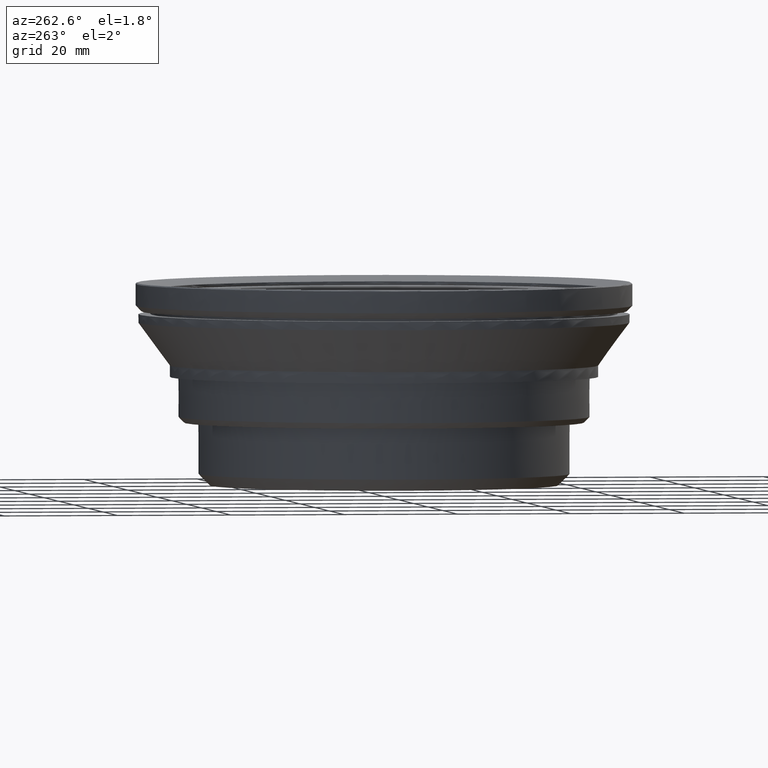
[diagram: clean part render]
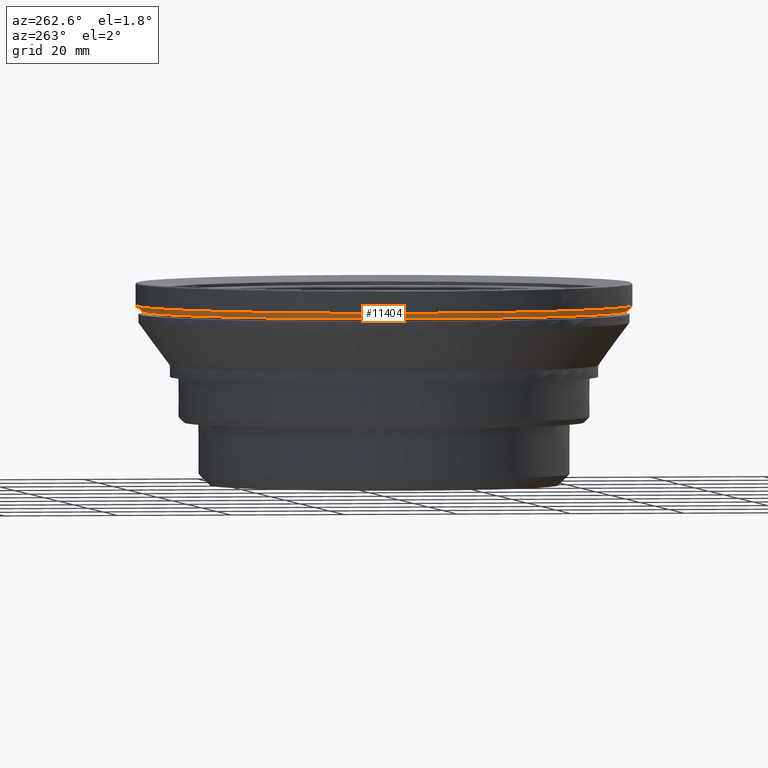
[diagram: same view with one face highlighted and labeled with its STEP entity id]
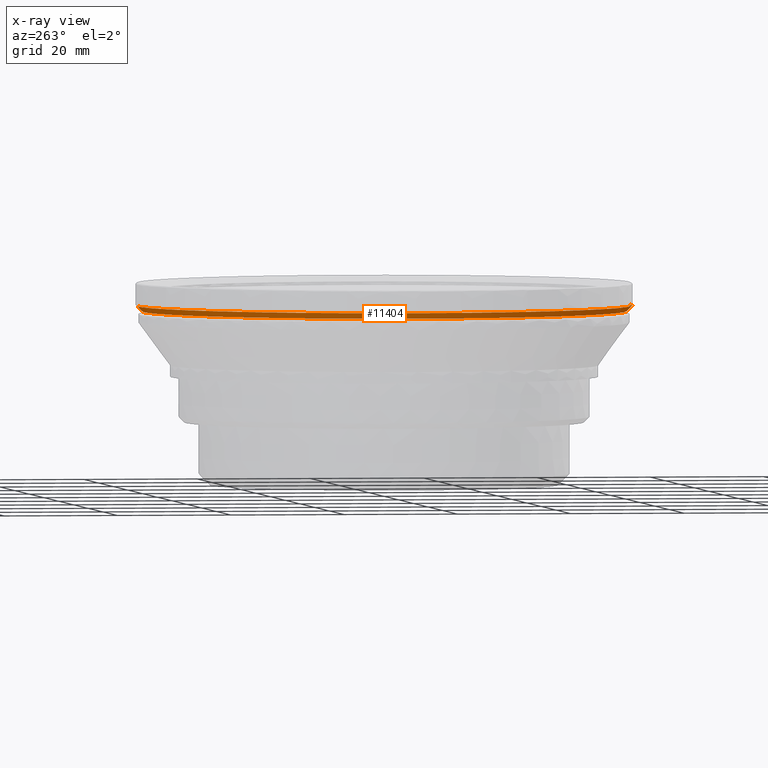
[diagram: x-ray of the same camera — body ghosted, the highlighted face saturated]
A machine part, auxiliary view. The second image highlights one B-rep face of the part: STEP entity #11404.
The next image is the same camera in x-ray: the body ghosted, the highlighted face saturated — about 0% of this face is hidden behind the body in this view.
In plain terms, the highlighted face is a freeform B-spline surface patch.
Its self-contained STEP definition (entity closure, byte-faithful):
#176 = CARTESIAN_POINT ( 'NONE',  ( -17.12293421148999784, -40.06108046163999603, 51.18783662029999704 ) ) ;
#414 = VERTEX_POINT ( 'NONE', #6916 ) ;
#776 = CARTESIAN_POINT ( 'NONE',  ( -0.6410287084725999618, 43.29902459803999903, 51.18783662029999704 ) ) ;
#779 = CARTESIAN_POINT ( 'NONE',  ( -38.19695187326483676, 18.84224418152011538, 50.51450328702001258 ) ) ;
#848 = CARTESIAN_POINT ( 'NONE',  ( -41.70528174329999871, -9.913624871716999465, 50.49450328685999523 ) ) ;
#850 = EDGE_CURVE ( 'NONE', #4732, #9756, #11648, .T. ) ;
#852 = CARTESIAN_POINT ( 'NONE',  ( -25.93205138025125223, -33.78706867180078177, 50.51450328702001968 ) ) ;
#923 = CARTESIAN_POINT ( 'NONE',  ( -0.6307342387858000388, 42.60367275139000043, 50.49450328685999523 ) ) ;
#925 = CARTESIAN_POINT ( 'NONE',  ( -21.29141842644903804, -36.88784837389284377, 50.51450328701999837 ) ) ;
#1069 = CARTESIAN_POINT ( 'NONE',  ( -7.275340839242000257, 42.24546592833999625, 50.49450328685999523 ) ) ;
#1343 = CARTESIAN_POINT ( 'NONE',  ( -0.6461759390771999456, -43.64670052142000145, 51.53450328702000149 ) ) ;
#1411 = CARTESIAN_POINT ( 'NONE',  ( 2.667341334222999905, -42.39617541940999956, 50.49450328685999523 ) ) ;
#1865 = CARTESIAN_POINT ( 'NONE',  ( 2.689108710705999883, 42.74215801888000499, 50.84116995357999969 ) ) ;
#1937 = CARTESIAN_POINT ( 'NONE',  ( -41.70528174425999879, 9.913624867665999929, 50.49450328685999523 ) ) ;
#1940 = CARTESIAN_POINT ( 'NONE',  ( -11.02832487589072130, 41.13895736189599717, 50.51450328701999837 ) ) ;
#2000 = CARTESIAN_POINT ( 'NONE',  ( -8.987427641094275253E-09, -43.16656292160757857, 51.18127369809436544 ) ) ;
#2010 = CARTESIAN_POINT ( 'NONE',  ( -38.59446249487000102, -19.44717719535000455, 50.84116995357999969 ) ) ;
#2013 = CARTESIAN_POINT ( 'NONE',  ( -18.84224417605696900, -38.19695187592433427, 50.51450328701999126 ) ) ;
#2060 = CARTESIAN_POINT ( 'NONE',  ( -1.143262293001944597E-08, 43.16656292160695330, 51.18127369809443650 ) ) ;
#2088 = CARTESIAN_POINT ( 'NONE',  ( -33.31834447130000143, 28.07085194068999812, 51.18783662029999704 ) ) ;
#2089 = CARTESIAN_POINT ( 'NONE',  ( -41.13895407856566067, -11.02834138385138552, 50.51450328702001968 ) ) ;
#2434 = CARTESIAN_POINT ( 'NONE',  ( -2.790572933582447845, 42.49999999999998579, 50.51450328701998416 ) ) ;
#2579 = CARTESIAN_POINT ( 'NONE',  ( -26.11959189628933586, 35.28020475025675040, 51.51460783262084675 ) ) ;
#2652 = CARTESIAN_POINT ( 'NONE',  ( -42.70678239039875024, -10.15168828501007603, 51.51460783262084675 ) ) ;
#3013 = CARTESIAN_POINT ( 'NONE',  ( -8.917946168050688399E-09, -42.83323038938393523, 50.84793956363781575 ) ) ;
#3025 = CARTESIAN_POINT ( 'NONE',  ( -33.58587904433999682, -28.29625100219000444, 51.53450328702000149 ) ) ;
#3028 = CARTESIAN_POINT ( 'NONE',  ( -18.84224669386491513, 38.19695794019239088, 50.51450328701999837 ) ) ;
#3099 = CARTESIAN_POINT ( 'NONE',  ( 2.710876091307000024, 43.08814061809000151, 51.18783662029999704 ) ) ;
#3180 = CARTESIAN_POINT ( 'NONE',  ( -42.04562616436000155, -9.994527020713999121, 50.84116995357999969 ) ) ;
#3181 = CARTESIAN_POINT ( 'NONE',  ( -5.554337271858964975, -42.22780119553772238, 50.51450328701999837 ) ) ;
#3237 = CARTESIAN_POINT ( 'NONE',  ( 5.216086633796179786E-10, -43.49984318133144967, 51.51455555978470358 ) ) ;
#3302 = CARTESIAN_POINT ( 'NONE',  ( -1.134442188287702650E-08, 42.83323038938806349, 50.84793956363802891 ) ) ;
#3327 = CARTESIAN_POINT ( 'NONE',  ( -25.71522683207000171, 34.73402155121999613, 50.84116995357999969 ) ) ;
#3394 = CARTESIAN_POINT ( 'NONE',  ( 2.710876095491000282, -43.08814061782999971, 51.18783662029999704 ) ) ;
#3603 = CARTESIAN_POINT ( 'NONE',  ( -26.11959189286104532, -35.28020475279559065, 51.51460783262084675 ) ) ;
#3674 = CARTESIAN_POINT ( 'NONE',  ( -42.70678239137874499, 10.15168828086180852, 51.51460783262084675 ) ) ;
#4121 = CARTESIAN_POINT ( 'NONE',  ( -42.72631500648000014, -10.15633131871000039, 51.53450328702000149 ) ) ;
#4124 = CARTESIAN_POINT ( 'NONE',  ( -21.29141477552102302, 36.88784291700463314, 50.51450328701999837 ) ) ;
#4194 = CARTESIAN_POINT ( 'NONE',  ( -25.92338246309000027, -35.01518113048000203, 51.18783662029999704 ) ) ;
#4273 = CARTESIAN_POINT ( 'NONE',  ( -7.334712735616999879, 42.59021863214999826, 50.84116995357999969 ) ) ;
#4348 = CARTESIAN_POINT ( 'NONE',  ( -40.33280839018735975, 13.68584756952998127, 50.51450328702001258 ) ) ;
#4419 = CARTESIAN_POINT ( 'NONE',  ( -43.91684249652000460, -2.132519050235000049E-09, 51.53450328702000149 ) ) ;
#4554 = CARTESIAN_POINT ( 'NONE',  ( -0.6307342346483000295, -42.60367275144999155, 50.49450328685999523 ) ) ;
#4620 = CARTESIAN_POINT ( 'NONE',  ( 2.689108714856999871, -42.74215801862000319, 50.84116995357999969 ) ) ;
#4691 = CARTESIAN_POINT ( 'NONE',  ( -3.345005010901474680E-10, 42.49994892860434703, 50.51455435812430039 ) ) ;
#4732 = VERTEX_POINT ( 'NONE', #13106 ) ;
#4761 = CARTESIAN_POINT ( 'NONE',  ( -0.6358814694579000282, -42.95134867478000018, 50.84116995357999969 ) ) ;
#4767 = CARTESIAN_POINT ( 'NONE',  ( -43.89676562296189388, -2.131544137074251523E-09, 51.51460783262084675 ) ) ;
#4817 = EDGE_CURVE ( 'NONE', #414, #4732, #10490, .T. ) ;
#4844 = CARTESIAN_POINT ( 'NONE',  ( -17.25253463165353907, 40.36429558881104640, 51.51460783262084675 ) ) ;
#5149 = CARTESIAN_POINT ( 'NONE',  ( -36.88784291639579038, -21.29141477623392120, 50.51450328702000547 ) ) ;
#5192 = CARTESIAN_POINT ( 'NONE',  ( -3.345005010901474680E-10, 42.49994892860434703, 50.51455435812430039 ) ) ;
#5219 = CARTESIAN_POINT ( 'NONE',  ( -17.12293421537999905, 40.06108045997999767, 51.18783662029999704 ) ) ;
#5222 = CARTESIAN_POINT ( 'NONE',  ( -32.02530903599721057, 28.07877200791720540, 50.51450328701999837 ) ) ;
#5276 = EDGE_CURVE ( 'NONE', #10782, #9756, #9105, .T. ) ;
#5294 = CARTESIAN_POINT ( 'NONE',  ( -25.50707119431000081, -34.45286197696999864, 50.49450328685999523 ) ) ;
#5417 = CARTESIAN_POINT ( 'NONE',  ( -5.216146046508750435E-10, 43.49984318133139993, 51.51455555978470358 ) ) ;
#5444 = CARTESIAN_POINT ( 'NONE',  ( -16.98544308206000153, 39.73940408810999969, 50.84116995357999969 ) ) ;
#5515 = CARTESIAN_POINT ( 'NONE',  ( -17.26042534868999923, 40.38275683185000275, 51.53450328702000149 ) ) ;
#5719 = CARTESIAN_POINT ( 'NONE',  ( -7.453456524163000196, -43.27972404047000055, 51.53450328702000149 ) ) ;
#5799 = CARTESIAN_POINT ( 'NONE',  ( -2.472892774579610986, -43.49965624862979041, 51.51460783262084675 ) ) ;
#5868 = CARTESIAN_POINT ( 'NONE',  ( -33.57052503871091886, -28.28331518483076934, 51.51460783262084675 ) ) ;
#6282 = EDGE_CURVE ( 'NONE', #10782, #414, #11226, .T. ) ;
#6319 = CARTESIAN_POINT ( 'NONE',  ( -16.84795194875000135, 39.41772771624000171, 50.49450328685999523 ) ) ;
#6392 = CARTESIAN_POINT ( 'NONE',  ( -25.71522682870000054, -34.73402155371999811, 50.84116995357999969 ) ) ;
#6455 = CARTESIAN_POINT ( 'NONE',  ( 3.344953627059759891E-10, -42.49994892860434703, 50.51455435812420092 ) ) ;
#6465 = CARTESIAN_POINT ( 'NONE',  ( -39.21927944693999990, -19.76201318984000110, 51.53450328702000149 ) ) ;
#6468 = CARTESIAN_POINT ( 'NONE',  ( -2.790606591290962335, -42.49999999999999289, 50.51450328702001258 ) ) ;
#6542 = CARTESIAN_POINT ( 'NONE',  ( -25.92338246649000055, 35.01518112796000537, 51.18783662029999704 ) ) ;
#6543 = CARTESIAN_POINT ( 'NONE',  ( -42.50000328341280920, -2.790623097142965303, 50.51450328701999837 ) ) ;
#6613 = CARTESIAN_POINT ( 'NONE',  ( 2.732643471907000521, 43.43412321730000514, 51.53450328702000149 ) ) ;
#6680 = CARTESIAN_POINT ( 'NONE',  ( -17.26042534476999890, -40.38275683353000289, 51.53450328702000149 ) ) ;
#6916 = CARTESIAN_POINT ( 'NONE',  ( 3.344953627059759891E-10, -42.49994892860434703, 50.51455435812420092 ) ) ;
#6955 = CARTESIAN_POINT ( 'NONE',  ( -16.84795194491999837, -39.41772771787000096, 50.49450328685999523 ) ) ;
#7417 = CARTESIAN_POINT ( 'NONE',  ( -5.216146046508750435E-10, 43.49984318133139993, 51.51455555978470358 ) ) ;
#7485 = CARTESIAN_POINT ( 'NONE',  ( -25.50707119766000375, 34.45286197448999843, 50.49450328685999523 ) ) ;
#7560 = CARTESIAN_POINT ( 'NONE',  ( -38.59446249676000207, 19.44717719160000158, 50.84116995357999969 ) ) ;
#7563 = CARTESIAN_POINT ( 'NONE',  ( -32.02530439295125575, -28.07876736504574566, 50.51450328702000547 ) ) ;
#7640 = CARTESIAN_POINT ( 'NONE',  ( -42.38597058541999729, -10.07542916971000047, 51.18783662029999704 ) ) ;
#7711 = CARTESIAN_POINT ( 'NONE',  ( 2.667341330105000186, 42.39617541967000136, 50.49450328685999523 ) ) ;
#7850 = CARTESIAN_POINT ( 'NONE',  ( -7.275340835139000539, -42.24546592904999898, 50.49450328685999523 ) ) ;
#8126 = CARTESIAN_POINT ( 'NONE',  ( -39.20135009716325669, 19.75297885165128520, 51.51460783262084675 ) ) ;
#8577 = CARTESIAN_POINT ( 'NONE',  ( -33.31834446858000121, -28.07085194392999838, 51.18783662029999704 ) ) ;
#8580 = CARTESIAN_POINT ( 'NONE',  ( -36.88784837729289734, 21.29141842284485264, 50.51450328702001258 ) ) ;
#8651 = CARTESIAN_POINT ( 'NONE',  ( -7.453456528365999922, 43.27972403975000049, 51.53450328702000149 ) ) ;
#8729 = CARTESIAN_POINT ( 'NONE',  ( -32.78327531973000220, 27.62005382422000110, 50.49450328685999523 ) ) ;
#8801 = CARTESIAN_POINT ( 'NONE',  ( -38.90687097090000179, -19.60459519260000150, 51.18783662029999704 ) ) ;
#8802 = CARTESIAN_POINT ( 'NONE',  ( -33.78706866841470458, 25.93205138383444819, 50.51450328701999837 ) ) ;
#9007 = CARTESIAN_POINT ( 'NONE',  ( -16.98544307820000299, -39.73940408975999361, 50.84116995357999969 ) ) ;
#9083 = ORIENTED_EDGE ( 'NONE', *, *, #850, .F. ) ;
#9105 = B_SPLINE_CURVE_WITH_KNOTS ( 'NONE', 3,
 ( #11348, #5799, #9153, #13613, #3603, #5868, #10322, #2652, #4767, #3674, #8126, #12588, #2579, #4844, #10468, #11932, #9661 ),
 .UNSPECIFIED., .F., .F.,
 ( 4, 1, 1, 1, 1, 1, 1, 1, 1, 1, 1, 1, 1, 1, 4 ),
 ( 0.000000000000000000, 0.05428572841717568126, 0.1285714403450512744, 0.2028571522729268883, 0.2771428642008024745, 0.3514285761285825815, 0.4257142880566173737, 0.4999999999843338094, 0.5742857119123685461, 0.6485714238400850373, 0.7228571357681197185, 0.7971428476958362097, 0.8714285596238708909, 0.9457142715515874931, 1.000000000000000000 ),
 .UNSPECIFIED. ) ;
#9147 = CARTESIAN_POINT ( 'NONE',  ( -7.334712731480999892, -42.59021863286000098, 50.84116995357999969 ) ) ;
#9153 = CARTESIAN_POINT ( 'NONE',  ( -8.329758667298046149, -43.00007325279307224, 51.51460783262084675 ) ) ;
#9216 = CARTESIAN_POINT ( 'NONE',  ( 2.732643476124999804, -43.43412321704000334, 51.53450328702000149 ) ) ;
#9601 = CARTESIAN_POINT ( 'NONE',  ( -28.07876736485039970, 32.02530439294827147, 50.51450328701997705 ) ) ;
#9661 = CARTESIAN_POINT ( 'NONE',  ( -5.216146046508750435E-10, 43.49984318133139993, 51.51455555978470358 ) ) ;
#9671 = CARTESIAN_POINT ( 'NONE',  ( -42.72631500746000199, 10.15633131456000093, 51.53450328702000149 ) ) ;
#9756 = VERTEX_POINT ( 'NONE', #7417 ) ;
#9897 = CARTESIAN_POINT ( 'NONE',  ( -42.38597058639999915, 10.07542916559000012, 51.18783662029999704 ) ) ;
#9960 = CARTESIAN_POINT ( 'NONE',  ( 5.216086633796179786E-10, -43.49984318133144967, 51.51455555978470358 ) ) ;
#9972 = CARTESIAN_POINT ( 'NONE',  ( -33.05080989551999693, 27.84545288246000183, 50.84116995357999969 ) ) ;
#10322 = CARTESIAN_POINT ( 'NONE',  ( -39.20135009524384628, -19.75297885545956689, 51.51460783262084675 ) ) ;
#10405 = EDGE_LOOP ( 'NONE', ( #13272, #10709, #10700, #9083 ) ) ;
#10468 = CARTESIAN_POINT ( 'NONE',  ( -8.329758670106681251, 43.00007325239138112, 51.51460783262084675 ) ) ;
#10490 = B_SPLINE_CURVE_WITH_KNOTS ( 'NONE', 3,
 ( #11871, #6468, #3181, #13112, #12168, #2013, #925, #852, #11074, #7563, #13190, #5149, #12020, #12095, #2089, #10923, #6543, #11000, #14362, #13040, #4348, #779, #8580, #8802, #5222, #9601, #14064, #4124, #3028, #11945, #1940, #10847, #2434, #4691 ),
 .UNSPECIFIED., .F., .F.,
 ( 4, 2, 2, 2, 2, 2, 2, 2, 2, 2, 2, 2, 2, 2, 2, 2, 4 ),
 ( 0.000000000000000000, 0.06250000000000002776, 0.1250000000000000555, 0.1875000000000000833, 0.2500000000000001110, 0.3125000000000000555, 0.3750000000000000555, 0.4375000000000000000, 0.5000000000000000000, 0.5625000000000000000, 0.6250000000000000000, 0.6875000000000001110, 0.7500000000000001110, 0.8125000000000001110, 0.8750000000000001110, 0.9375000000000001110, 1.000000000000000000 ),
 .UNSPECIFIED. ) ;
#10700 = ORIENTED_EDGE ( 'NONE', *, *, #5276, .T. ) ;
#10709 = ORIENTED_EDGE ( 'NONE', *, *, #6282, .F. ) ;
#10772 = CARTESIAN_POINT ( 'NONE',  ( -38.28205402071000663, 19.28975919437999664, 50.49450328685999523 ) ) ;
#10782 = VERTEX_POINT ( 'NONE', #3237 ) ;
#10844 = FACE_OUTER_BOUND ( 'NONE', #10405, .T. ) ;
#10847 = CARTESIAN_POINT ( 'NONE',  ( -5.554352495477099083, 42.22779147237920938, 50.51450328701999126 ) ) ;
#10920 = CARTESIAN_POINT ( 'NONE',  ( -33.58587904708999616, 28.29625099892999884, 51.53450328702000149 ) ) ;
#10923 = CARTESIAN_POINT ( 'NONE',  ( -42.22779475571444152, -5.554335987491702653, 50.51450328702000547 ) ) ;
#10999 = CARTESIAN_POINT ( 'NONE',  ( -38.90687097281000462, 19.60459518881999941, 51.18783662029999704 ) ) ;
#11000 = CARTESIAN_POINT ( 'NONE',  ( -42.49999671658713396, 2.790623097168194455, 50.51450328701999837 ) ) ;
#11074 = CARTESIAN_POINT ( 'NONE',  ( -28.07877200793204508, -32.02530903578407617, 50.51450328702000547 ) ) ;
#11226 = B_SPLINE_CURVE_WITH_KNOTS ( 'NONE', 3,
 ( #9960, #2000, #3013, #6455 ),
 .UNSPECIFIED., .F., .F.,
 ( 4, 4 ),
 ( 0.000000000000000000, 1.000000000000000000 ),
 .UNSPECIFIED. ) ;
#11348 = CARTESIAN_POINT ( 'NONE',  ( 5.216086633796179786E-10, -43.49984318133144967, 51.51455555978470358 ) ) ;
#11404 = ADVANCED_FACE ( 'NONE', ( #10844 ), #12323, .T. ) ;
#11411 = CARTESIAN_POINT ( 'NONE',  ( -7.394084627822000044, -42.93497133665999854, 51.18783662029999704 ) ) ;
#11648 = B_SPLINE_CURVE_WITH_KNOTS ( 'NONE', 3,
 ( #5192, #3302, #2060, #5417 ),
 .UNSPECIFIED., .F., .F.,
 ( 4, 4 ),
 ( 0.000000000000000000, 1.000000000000000000 ),
 .UNSPECIFIED. ) ;
#11868 = CARTESIAN_POINT ( 'NONE',  ( -26.13153810089999851, 35.29634070468999596, 51.53450328702000149 ) ) ;
#11871 = CARTESIAN_POINT ( 'NONE',  ( 3.344953627059759891E-10, -42.49994892860434703, 50.51455435812420092 ) ) ;
#11932 = CARTESIAN_POINT ( 'NONE',  ( -2.472892775973612789, 43.49965624863406077, 51.51460783262084675 ) ) ;
#11942 = CARTESIAN_POINT ( 'NONE',  ( -0.6461759433160001453, 43.64670052136000322, 51.53450328702000149 ) ) ;
#11945 = CARTESIAN_POINT ( 'NONE',  ( -13.68584505716186506, 40.33280232326939085, 50.51450328701999837 ) ) ;
#12017 = CARTESIAN_POINT ( 'NONE',  ( -39.21927944886000006, 19.76201318602999990, 51.53450328702000149 ) ) ;
#12020 = CARTESIAN_POINT ( 'NONE',  ( -38.19695793993880528, -18.84224669371818095, 50.51450328702000547 ) ) ;
#12094 = CARTESIAN_POINT ( 'NONE',  ( -38.28205401883000292, -19.28975919809999695, 50.49450328685999523 ) ) ;
#12095 = CARTESIAN_POINT ( 'NONE',  ( -40.33280232353273931, -13.68584505728531653, 50.51450328701999837 ) ) ;
#12167 = CARTESIAN_POINT ( 'NONE',  ( -42.86735912788000036, -2.081557148870000060E-09, 50.49450328685999523 ) ) ;
#12168 = CARTESIAN_POINT ( 'NONE',  ( -13.68584757501642990, -40.33280838751819886, 50.51450328701999837 ) ) ;
#12236 = CARTESIAN_POINT ( 'NONE',  ( -0.6410287042675999469, -43.29902459809999726, 51.18783662029999704 ) ) ;
#12323 = B_SPLINE_SURFACE_WITH_KNOTS ( 'NONE', 3, 3, ( 
 ( #7711, #1865, #3099, #6613 ),
 ( #923, #14285, #776, #11942 ),
 ( #1069, #4273, #13189, #8651 ),
 ( #6319, #5444, #5219, #5515 ),
 ( #7485, #3327, #6542, #11868 ),
 ( #8729, #9972, #2088, #10920 ),
 ( #10772, #7560, #10999, #12017 ),
 ( #1937, #14433, #9897, #9671 ),
 ( #12167, #14361, #14135, #4419 ),
 ( #848, #3180, #7640, #4121 ),
 ( #12094, #2010, #8801, #6465 ),
 ( #14208, #13262, #8577, #3025 ),
 ( #5294, #6392, #4194, #13109 ),
 ( #6955, #9007, #176, #6680 ),
 ( #7850, #9147, #11411, #5719 ),
 ( #4554, #4761, #12236, #1343 ),
 ( #1411, #4620, #3394, #9216 ) ),
 .UNSPECIFIED., .F., .F., .F.,
 ( 4, 1, 1, 1, 1, 1, 1, 1, 1, 1, 1, 1, 1, 1, 4 ),
 ( 4, 4 ),
 ( -3.204424508089000145, -2.971049053610999913, -2.737673599133999769, -2.504298144655999980, -2.270922690178999837, -2.037547235701000048, -1.804171781223999904, -1.570796326745999894, -1.337420872268999972, -1.104045417790999961, -0.8706699633137999772, -0.6372945088363000110, -0.4039190543587999893, -0.1705435998812999954, 0.06283185459616000279 ),
 ( 42.47999999984000397, 43.52000000000000313 ),
 .UNSPECIFIED. ) ;
#12588 = CARTESIAN_POINT ( 'NONE',  ( -33.57052504145921290, 28.28331518157192548, 51.51460783262084675 ) ) ;
#13040 = CARTESIAN_POINT ( 'NONE',  ( -41.13894763868665905, 11.02834010061254588, 50.51450328701998416 ) ) ;
#13106 = CARTESIAN_POINT ( 'NONE',  ( -3.345005010901474680E-10, 42.49994892860434703, 50.51455435812430039 ) ) ;
#13109 = CARTESIAN_POINT ( 'NONE',  ( -26.13153809746999912, -35.29634070723000150, 51.53450328702000149 ) ) ;
#13112 = CARTESIAN_POINT ( 'NONE',  ( -11.02834009955832428, -41.13894763872767868, 50.51450328701999837 ) ) ;
#13189 = CARTESIAN_POINT ( 'NONE',  ( -7.394084631992000389, 42.93497133594999582, 51.18783662029999704 ) ) ;
#13190 = CARTESIAN_POINT ( 'NONE',  ( -33.78707412933979271, -25.93205503040346116, 50.51450328702001258 ) ) ;
#13262 = CARTESIAN_POINT ( 'NONE',  ( -33.05080989281000114, -27.84545288566999943, 50.84116995357999969 ) ) ;
#13272 = ORIENTED_EDGE ( 'NONE', *, *, #4817, .F. ) ;
#13613 = CARTESIAN_POINT ( 'NONE',  ( -17.25253462773525470, -40.36429559048990257, 51.51460783262084675 ) ) ;
#14064 = CARTESIAN_POINT ( 'NONE',  ( -25.93205503113727772, 33.78707412871697358, 50.51450328701999837 ) ) ;
#14135 = CARTESIAN_POINT ( 'NONE',  ( -43.56701470696999934, -2.115531749779999501E-09, 51.18783662029999704 ) ) ;
#14208 = CARTESIAN_POINT ( 'NONE',  ( -32.78327531704999842, -27.62005382739999604, 50.49450328685999523 ) ) ;
#14285 = CARTESIAN_POINT ( 'NONE',  ( -0.6358814736292000003, 42.95134867471000462, 50.84116995357999969 ) ) ;
#14361 = CARTESIAN_POINT ( 'NONE',  ( -43.21718691742000829, -2.098544893413999940E-09, 50.84116995357999969 ) ) ;
#14362 = CARTESIAN_POINT ( 'NONE',  ( -42.22780119558360923, 5.554337270779998725, 50.51450328702001258 ) ) ;
#14433 = CARTESIAN_POINT ( 'NONE',  ( -42.04562616532999186, 9.994527016631000294, 50.84116995357999969 ) ) ;